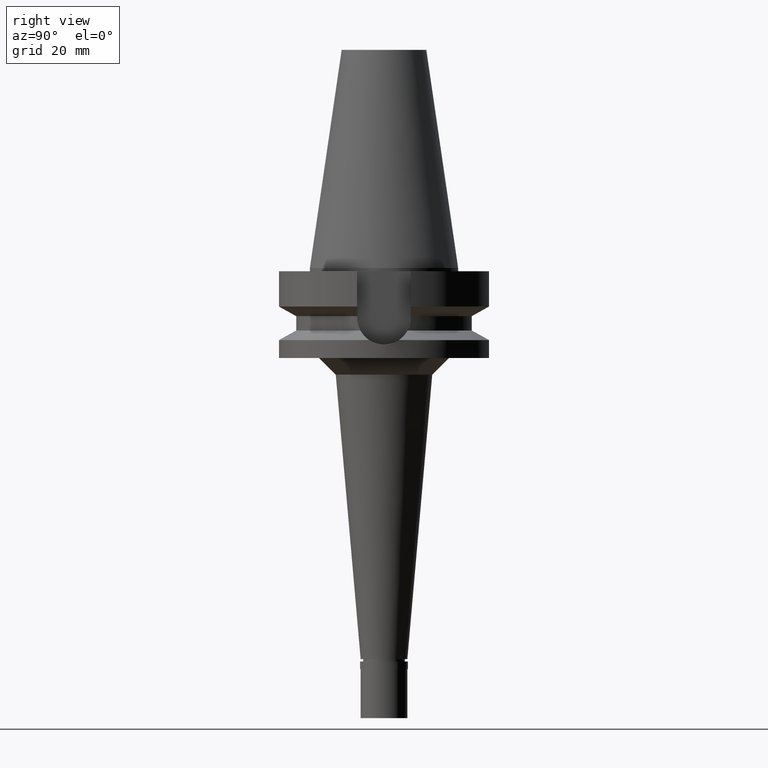
[diagram: clean part render]
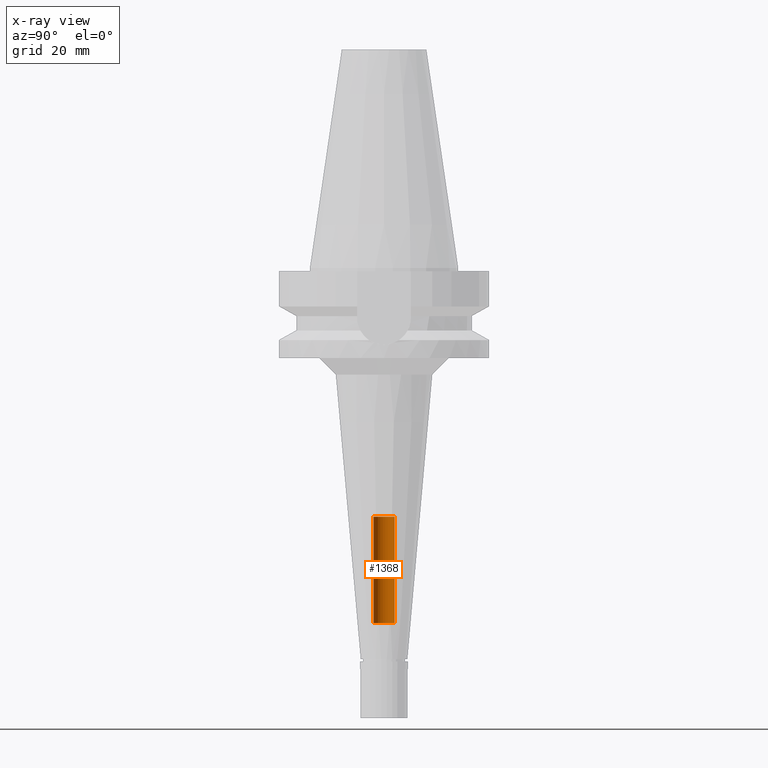
[diagram: x-ray — body ghosted, one internal face saturated and labeled with its STEP entity id]
A machine part, right view, then the same camera in x-ray: the body is ghosted and one INTERNAL B-rep face — a face not visible from any outside direction — is saturated and labeled: STEP entity #1368.
In plain terms, the highlighted cylindrical surface (edge-blend (fillet) strip) has radius 3.2 mm, axis along (0, 0, -1).
Its self-contained STEP definition (entity closure, byte-faithful):
#50 = ORIENTED_EDGE ( 'NONE', *, *, #1802, .T. ) ;
#75 = FACE_OUTER_BOUND ( 'NONE', #1904, .T. ) ;
#212 = CARTESIAN_POINT ( 'NONE',  ( 0.0000000000000000000, 2.145826121465999692E-14, -106.5000000000000000 ) ) ;
#358 = CARTESIAN_POINT ( 'NONE',  ( 0.0000000000000000000, 3.200000000000000178, -106.5000000000000000 ) ) ;
#387 = AXIS2_PLACEMENT_3D ( 'NONE', #212, #2501, #1161 ) ;
#562 = DIRECTION ( 'NONE',  ( 0.0000000000000000000, 0.0000000000000000000, -1.000000000000000000 ) ) ;
#622 = VERTEX_POINT ( 'NONE', #2507 ) ;
#728 = DIRECTION ( 'NONE',  ( 0.0000000000000000000, -1.000000000000000000, 0.0000000000000000000 ) ) ;
#945 = DIRECTION ( 'NONE',  ( 0.0000000000000000000, 1.000000000000000000, 0.0000000000000000000 ) ) ;
#1044 = AXIS2_PLACEMENT_3D ( 'NONE', #2764, #562, #728 ) ;
#1161 = DIRECTION ( 'NONE',  ( 0.0000000000000000000, -1.000000000000000000, 0.0000000000000000000 ) ) ;
#1167 = LINE ( 'NONE', #1375, #2676 ) ;
#1223 = EDGE_CURVE ( 'NONE', #622, #2426, #1872, .T. ) ;
#1368 = ADVANCED_FACE ( 'NONE', ( #75 ), #2826, .F. ) ;
#1375 = CARTESIAN_POINT ( 'NONE',  ( 0.0000000000000000000, -3.200000000000000178, -106.5000000000000000 ) ) ;
#1415 = ORIENTED_EDGE ( 'NONE', *, *, #2648, .T. ) ;
#1580 = DIRECTION ( 'NONE',  ( 0.0000000000000000000, 0.0000000000000000000, 1.000000000000000000 ) ) ;
#1776 = CARTESIAN_POINT ( 'NONE',  ( 0.0000000000000000000, -3.200000000000000178, -74.59999999999999432 ) ) ;
#1800 = CARTESIAN_POINT ( 'NONE',  ( 0.0000000000000000000, 3.200000000000000178, -106.5000000000000000 ) ) ;
#1802 = EDGE_CURVE ( 'NONE', #2362, #2805, #2286, .T. ) ;
#1816 = EDGE_CURVE ( 'NONE', #622, #2805, #1167, .T. ) ;
#1872 = CIRCLE ( 'NONE', #387, 3.200000000000000178 ) ;
#1904 = EDGE_LOOP ( 'NONE', ( #50, #2441, #2810, #1415 ) ) ;
#2224 = CARTESIAN_POINT ( 'NONE',  ( 0.0000000000000000000, 3.200000000000000178, -74.59999999999999432 ) ) ;
#2277 = DIRECTION ( 'NONE',  ( 0.0000000000000000000, 0.0000000000000000000, 1.000000000000000000 ) ) ;
#2286 = CIRCLE ( 'NONE', #2528, 3.200000000000000178 ) ;
#2362 = VERTEX_POINT ( 'NONE', #2224 ) ;
#2426 = VERTEX_POINT ( 'NONE', #1800 ) ;
#2430 = VECTOR ( 'NONE', #2643, 1000.000000000000000 ) ;
#2441 = ORIENTED_EDGE ( 'NONE', *, *, #1816, .F. ) ;
#2501 = DIRECTION ( 'NONE',  ( 0.0000000000000000000, 0.0000000000000000000, -1.000000000000000000 ) ) ;
#2507 = CARTESIAN_POINT ( 'NONE',  ( 0.0000000000000000000, -3.200000000000000178, -106.5000000000000000 ) ) ;
#2528 = AXIS2_PLACEMENT_3D ( 'NONE', #2745, #1580, #945 ) ;
#2610 = LINE ( 'NONE', #358, #2430 ) ;
#2643 = DIRECTION ( 'NONE',  ( 0.0000000000000000000, 0.0000000000000000000, 1.000000000000000000 ) ) ;
#2648 = EDGE_CURVE ( 'NONE', #2426, #2362, #2610, .T. ) ;
#2676 = VECTOR ( 'NONE', #2277, 1000.000000000000000 ) ;
#2745 = CARTESIAN_POINT ( 'NONE',  ( 0.0000000000000000000, 2.145826121465999692E-14, -74.59999999999999432 ) ) ;
#2764 = CARTESIAN_POINT ( 'NONE',  ( 0.0000000000000000000, 2.145826121465999692E-14, 75.21999999999999886 ) ) ;
#2805 = VERTEX_POINT ( 'NONE', #1776 ) ;
#2810 = ORIENTED_EDGE ( 'NONE', *, *, #1223, .T. ) ;
#2826 = CYLINDRICAL_SURFACE ( 'NONE', #1044, 3.200000000000000178 ) ;